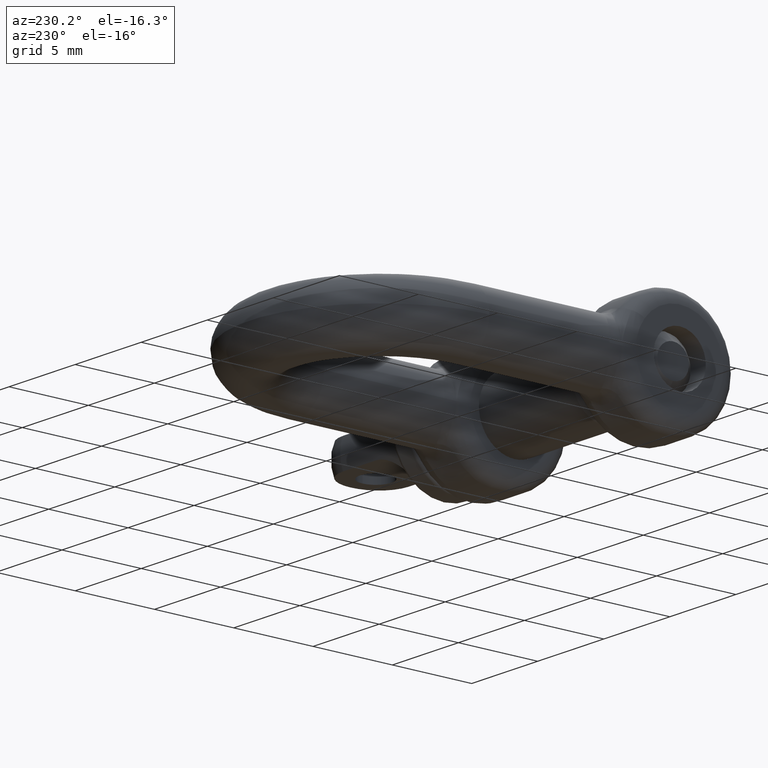
[diagram: clean part render]
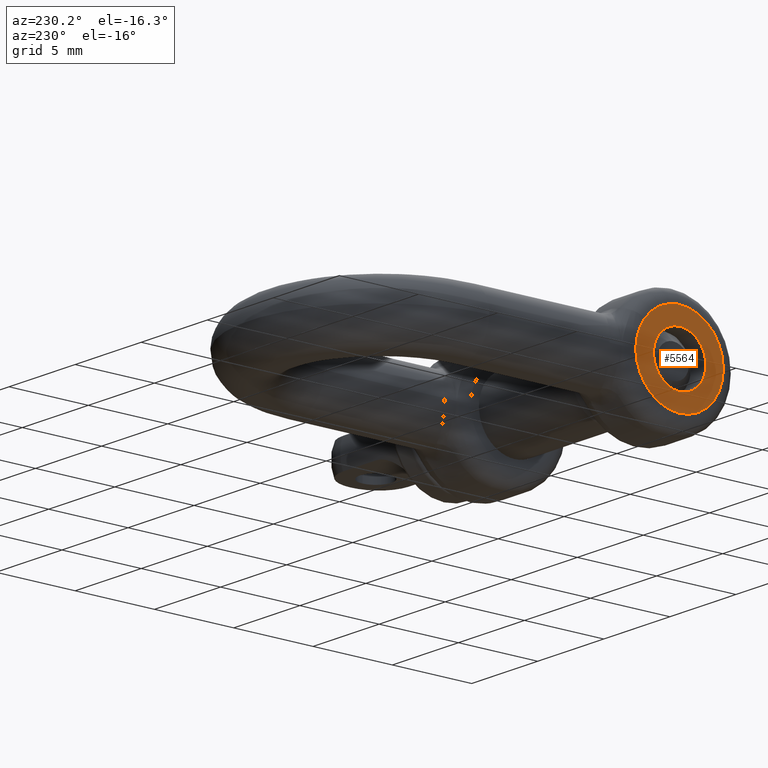
[diagram: same view with one face highlighted and labeled with its STEP entity id]
A machine part, auxiliary view. The second image highlights one B-rep face of the part: STEP entity #5564.
In plain terms, the highlighted planar face has unit normal (-1, 0, 0).
Its self-contained STEP definition (entity closure, byte-faithful):
#33 = VERTEX_POINT ( 'NONE', #8460 ) ;
#275 = VERTEX_POINT ( 'NONE', #12550 ) ;
#512 = CARTESIAN_POINT ( 'NONE',  ( -8.250000000000007100, 3.750000000000000400, 1.649999999999998400 ) ) ;
#732 = VERTEX_POINT ( 'NONE', #9416 ) ;
#1151 = CIRCLE ( 'NONE', #1761, 1.649999999999998400 ) ;
#1187 = B_SPLINE_CURVE_WITH_KNOTS ( 'NONE', 3,
 ( #4292, #4240, #8355, #5349, #11638, #11596, #9450, #12714, #6414, #7481 ),
 .UNSPECIFIED., .F., .F.,
 ( 4, 2, 2, 2, 4 ),
 ( 0.0000000000000000000, 0.5000000000000000000, 0.6250000000000000000, 0.7500000000000000000, 1.000000000000000000 ),
 .UNSPECIFIED. ) ;
#1277 = AXIS2_PLACEMENT_3D ( 'NONE', #4179, #11577, #6390 ) ;
#1367 = EDGE_CURVE ( 'NONE', #8121, #33, #1151, .T. ) ;
#1561 = CARTESIAN_POINT ( 'NONE',  ( -8.250000000000003600, 1.000000000000000900, 0.0000000000000000000 ) ) ;
#1761 = AXIS2_PLACEMENT_3D ( 'NONE', #5943, #10028, #3860 ) ;
#1774 = ORIENTED_EDGE ( 'NONE', *, *, #13580, .T. ) ;
#1940 = EDGE_LOOP ( 'NONE', ( #10713, #7260 ) ) ;
#2459 = CARTESIAN_POINT ( 'NONE',  ( -8.250000000000003600, 3.750000000000000900, 0.0000000000000000000 ) ) ;
#2674 = VERTEX_POINT ( 'NONE', #1561 ) ;
#2705 = CARTESIAN_POINT ( 'NONE',  ( -8.250000000000003600, 6.459022530606596000, 0.5642504372752544800 ) ) ;
#3502 = DIRECTION ( 'NONE',  ( 0.0000000000000000000, -1.000000000000000000, 0.0000000000000000000 ) ) ;
#3526 = CIRCLE ( 'NONE', #7217, 2.750000000000000000 ) ;
#3569 = EDGE_CURVE ( 'NONE', #275, #6210, #1187, .T. ) ;
#3626 = CARTESIAN_POINT ( 'NONE',  ( -8.250000000000003600, 6.473633949342702600, 0.4941714323253172900 ) ) ;
#3760 = CARTESIAN_POINT ( 'NONE',  ( -8.250000000000003600, 6.423955125639938800, 0.7036847676399772300 ) ) ;
#3860 = DIRECTION ( 'NONE',  ( 0.0000000000000000000, 0.0000000000000000000, -1.000000000000000000 ) ) ;
#4077 = FACE_BOUND ( 'NONE', #1940, .T. ) ;
#4146 = ORIENTED_EDGE ( 'NONE', *, *, #3569, .F. ) ;
#4179 = CARTESIAN_POINT ( 'NONE',  ( -8.250000000000007100, 3.750000000000000400, 0.0000000000000000000 ) ) ;
#4240 = CARTESIAN_POINT ( 'NONE',  ( -8.250000000000003600, 6.146338169653901700, -1.385176696201974300 ) ) ;
#4292 = CARTESIAN_POINT ( 'NONE',  ( -8.250000000000003600, 5.959312009831727200, -1.637510440642530300 ) ) ;
#4439 = CIRCLE ( 'NONE', #1277, 1.649999999999998400 ) ;
#4834 = CARTESIAN_POINT ( 'NONE',  ( -8.250000000000003600, 6.146338169653902600, 1.385176696201973800 ) ) ;
#5212 = CIRCLE ( 'NONE', #6578, 2.750000000000000000 ) ;
#5251 = DIRECTION ( 'NONE',  ( -1.000000000000000000, 1.652117596168387800E-016, 0.0000000000000000000 ) ) ;
#5349 = CARTESIAN_POINT ( 'NONE',  ( -8.250000000000003600, 6.403499139409388100, -0.7730400930547627300 ) ) ;
#5549 = DIRECTION ( 'NONE',  ( -1.000000000000000000, 1.652117596168387800E-016, 0.0000000000000000000 ) ) ;
#5564 = ADVANCED_FACE ( 'NONE', ( #13490, #4077 ), #8684, .T. ) ;
#5664 = DIRECTION ( 'NONE',  ( -1.000000000000000000, 1.652117596168387800E-016, 0.0000000000000000000 ) ) ;
#5744 = ORIENTED_EDGE ( 'NONE', *, *, #7666, .T. ) ;
#5943 = CARTESIAN_POINT ( 'NONE',  ( -8.250000000000007100, 3.750000000000000400, 0.0000000000000000000 ) ) ;
#6210 = VERTEX_POINT ( 'NONE', #9448 ) ;
#6390 = DIRECTION ( 'NONE',  ( 0.0000000000000000000, 0.0000000000000000000, -1.000000000000000000 ) ) ;
#6414 = CARTESIAN_POINT ( 'NONE',  ( -8.250000000000003600, 6.520390489298246300, -0.1416053689701772300 ) ) ;
#6485 = AXIS2_PLACEMENT_3D ( 'NONE', #11787, #5664, #7620 ) ;
#6578 = AXIS2_PLACEMENT_3D ( 'NONE', #7201, #5251, #11365 ) ;
#6860 = CARTESIAN_POINT ( 'NONE',  ( -8.250000000000003600, 6.508701354309359900, 0.2832107379403544500 ) ) ;
#6961 = CARTESIAN_POINT ( 'NONE',  ( -8.250000000000003600, 6.286607789520531700, 1.117404455011519400 ) ) ;
#7201 = CARTESIAN_POINT ( 'NONE',  ( -8.250000000000003600, 3.750000000000000900, 0.0000000000000000000 ) ) ;
#7217 = AXIS2_PLACEMENT_3D ( 'NONE', #2459, #5549, #3502 ) ;
#7260 = ORIENTED_EDGE ( 'NONE', *, *, #1367, .T. ) ;
#7481 = CARTESIAN_POINT ( 'NONE',  ( -8.250000000000003600, 6.520390489298246300, 0.0000000000000000000 ) ) ;
#7620 = DIRECTION ( 'NONE',  ( 1.652117596168387800E-016, 1.000000000000000000, 0.0000000000000000000 ) ) ;
#7666 = EDGE_CURVE ( 'NONE', #2674, #732, #5212, .T. ) ;
#8121 = VERTEX_POINT ( 'NONE', #512 ) ;
#8355 = CARTESIAN_POINT ( 'NONE',  ( -8.250000000000003600, 6.286607789520531700, -1.117404455011518700 ) ) ;
#8433 = EDGE_CURVE ( 'NONE', #6210, #732, #9570, .T. ) ;
#8460 = CARTESIAN_POINT ( 'NONE',  ( -8.250000000000007100, 3.750000000000000400, -1.649999999999998400 ) ) ;
#8684 = PLANE ( 'NONE',  #6485 ) ;
#8933 = CARTESIAN_POINT ( 'NONE',  ( -8.250000000000003600, 6.403499139409389000, 0.7730400930547627300 ) ) ;
#9416 = CARTESIAN_POINT ( 'NONE',  ( -8.250000000000003600, 5.959312009831727200, 1.637510440642530300 ) ) ;
#9448 = CARTESIAN_POINT ( 'NONE',  ( -8.250000000000003600, 6.520390489298246300, 0.0000000000000000000 ) ) ;
#9450 = CARTESIAN_POINT ( 'NONE',  ( -8.250000000000003600, 6.473633949342701800, -0.4941714323253171800 ) ) ;
#9549 = EDGE_CURVE ( 'NONE', #33, #8121, #4439, .T. ) ;
#9570 = B_SPLINE_CURVE_WITH_KNOTS ( 'NONE', 3,
 ( #9852, #9683, #6860, #3626, #2705, #3760, #8933, #6961, #4834, #11036 ),
 .UNSPECIFIED., .F., .F.,
 ( 4, 2, 2, 2, 4 ),
 ( 0.0000000000000000000, 0.2500000000000000000, 0.3750000000000000000, 0.5000000000000000000, 1.000000000000000000 ),
 .UNSPECIFIED. ) ;
#9683 = CARTESIAN_POINT ( 'NONE',  ( -8.250000000000003600, 6.520390489298246300, 0.1416053689701772300 ) ) ;
#9852 = CARTESIAN_POINT ( 'NONE',  ( -8.250000000000003600, 6.520390489298246300, 0.0000000000000000000 ) ) ;
#10028 = DIRECTION ( 'NONE',  ( 1.000000000000000000, -0.0000000000000000000, -0.0000000000000000000 ) ) ;
#10713 = ORIENTED_EDGE ( 'NONE', *, *, #9549, .T. ) ;
#11036 = CARTESIAN_POINT ( 'NONE',  ( -8.250000000000003600, 5.959312009831727200, 1.637510440642530300 ) ) ;
#11204 = ORIENTED_EDGE ( 'NONE', *, *, #8433, .F. ) ;
#11365 = DIRECTION ( 'NONE',  ( 0.0000000000000000000, -1.000000000000000000, 0.0000000000000000000 ) ) ;
#11577 = DIRECTION ( 'NONE',  ( 1.000000000000000000, -0.0000000000000000000, -0.0000000000000000000 ) ) ;
#11596 = CARTESIAN_POINT ( 'NONE',  ( -8.250000000000003600, 6.459022530606595100, -0.5642504372752542600 ) ) ;
#11638 = CARTESIAN_POINT ( 'NONE',  ( -8.250000000000003600, 6.423955125639937900, -0.7036847676399770000 ) ) ;
#11787 = CARTESIAN_POINT ( 'NONE',  ( -8.250000000000003600, 3.750000000000001300, 0.0000000000000000000 ) ) ;
#12550 = CARTESIAN_POINT ( 'NONE',  ( -8.250000000000003600, 5.959312009831727200, -1.637510440642530300 ) ) ;
#12714 = CARTESIAN_POINT ( 'NONE',  ( -8.250000000000003600, 6.508701354309359000, -0.2832107379403544500 ) ) ;
#13431 = EDGE_LOOP ( 'NONE', ( #4146, #1774, #5744, #11204 ) ) ;
#13490 = FACE_OUTER_BOUND ( 'NONE', #13431, .T. ) ;
#13580 = EDGE_CURVE ( 'NONE', #275, #2674, #3526, .T. ) ;